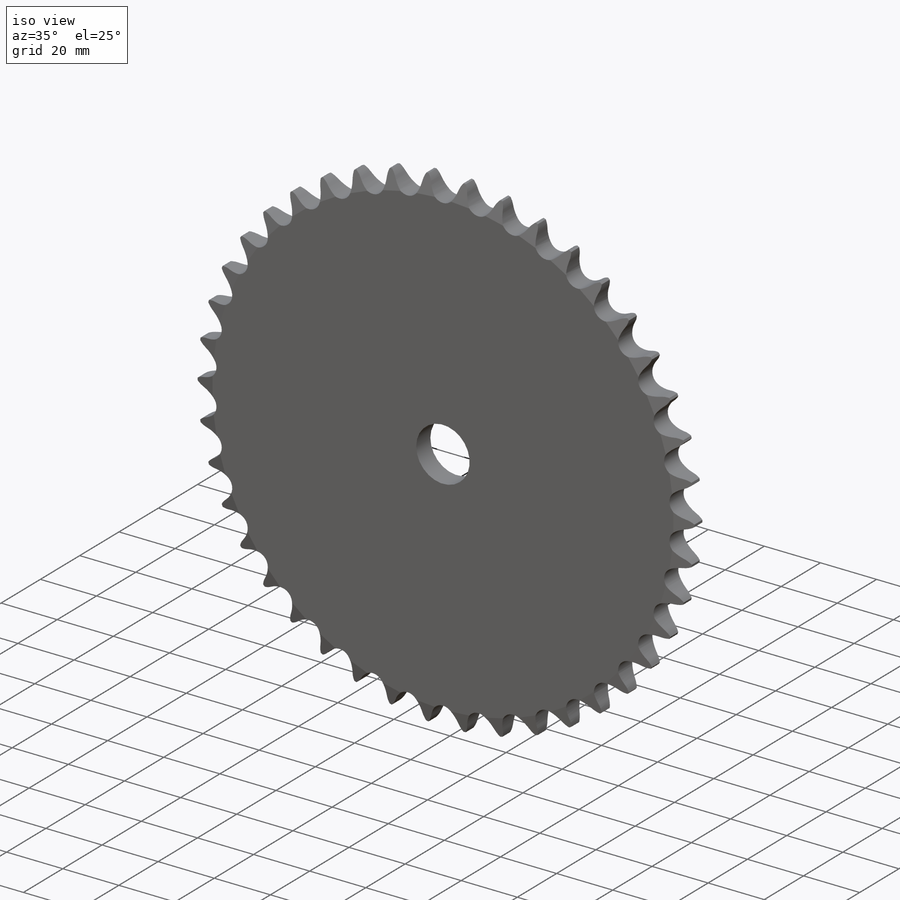
[diagram: iso view]
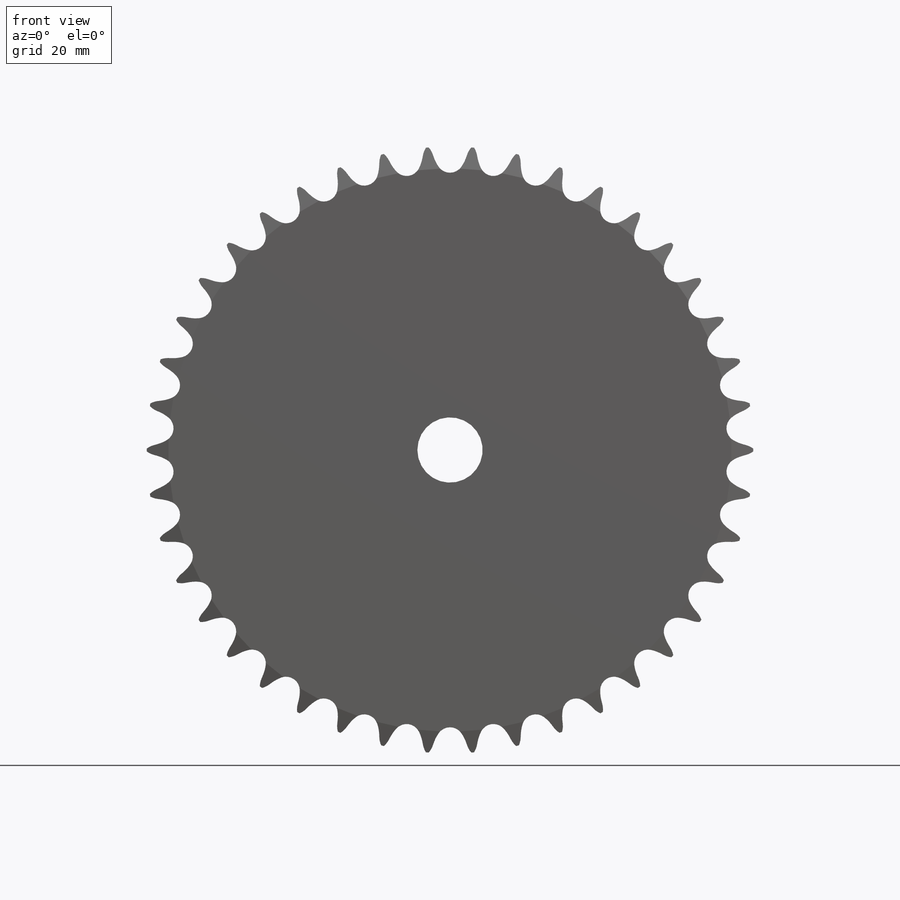
[diagram: front view]
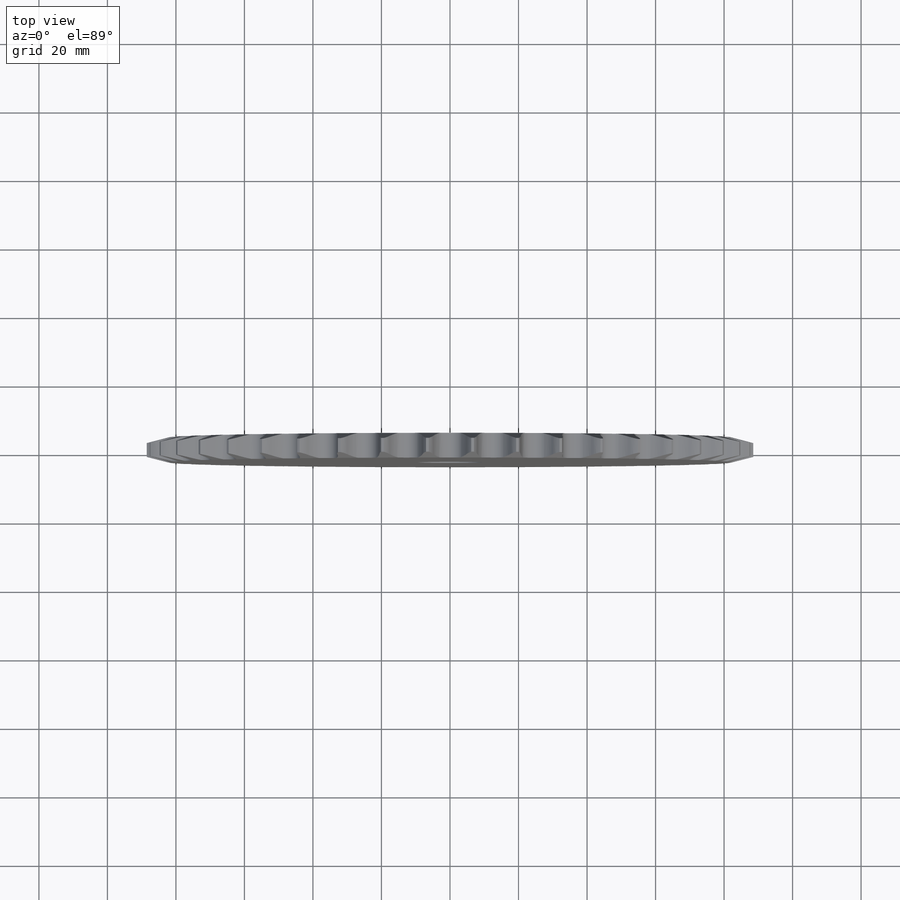
[diagram: top view]
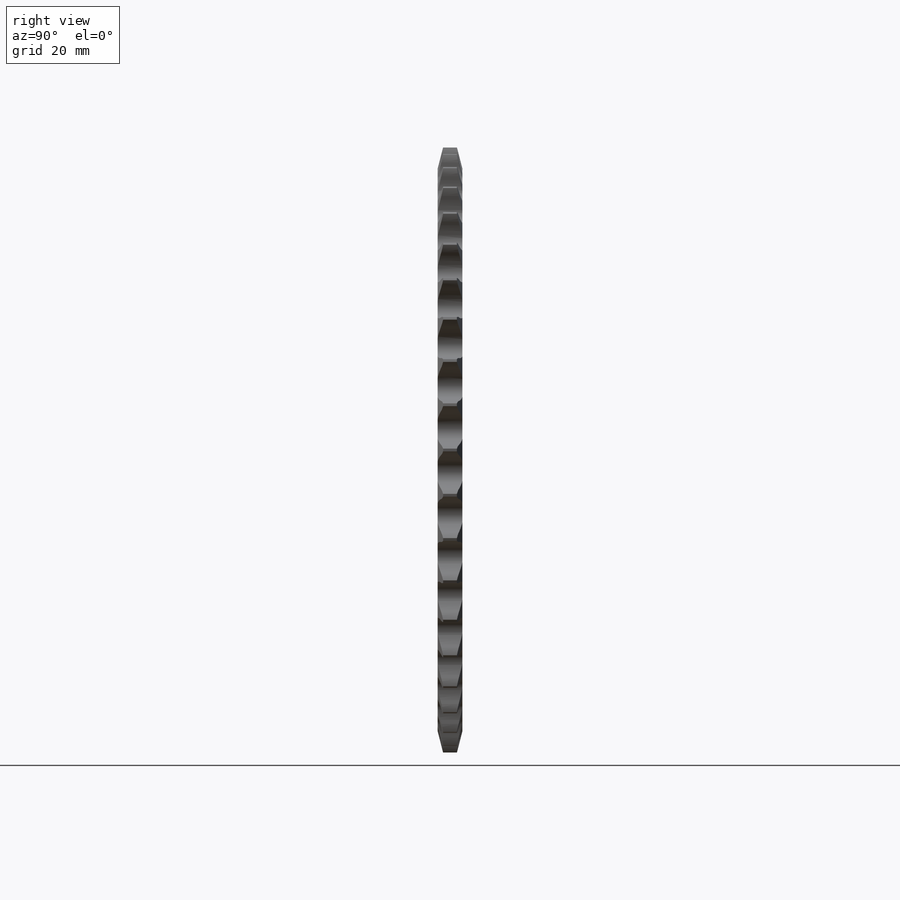
[diagram: right view]
SOLIDWORKS PART (.sldprt)
format: sldprt  version: not decoded by parser v0  size: 1,712,128 bytes
history: native  units: mm
features: sketch x12, cut_extrude x7, revolve x2, pattern_circular x2, material x1, plane x1, extrude x1 (+11 scaffold rows collapsed)
feature tree (37):
  scaffold x11  (default folders/planes/origin — collapsed)
  material  "Material <not specified>"
  sketch  "Sprocket-BaseSketch"  dims[Hub Surface=3.6068mm RightSide (1)=1.5875mm RightSide (2)=6.35mm OD=~88.544861mm LeftSide (1)=1.5875mm LeftSide (2)=6.35mm Tooth Width=7.2136mm]
  revolve  "40 (08A) ANSI (ISO) Chain Number, 6.691in P.D."  Angle=360deg
  sketch  "Tooth-Sketch"
  cut_extrude  "Tooth-Cut, Number of teeth: 42"  Depth=25.4mm
  pattern_circular  "Tooth Pattern, 42 / 42"  Count=42 Angle=8.571429deg
  sketch  "Sketch3"  dims[Hub Mounting=3.6068mm Hub OD=44.45mm Hub Width=21.3614mm]
  revolve  "Hub-Revolve1"  Angle=360deg
  sketch  "Sketch4"  dims[Bore Diameter =19.05mm]
  cut_extrude  "Cut-Extrude1"  [1 undecoded]
  sketch  "Sketch5"
  plane  "Plane1"
  sketch  "Sketch6"  dims[Keyway Wd =4.7625mm Keyway Dp =~2.38125mm]
  cut_extrude  "Cut-Extrude2"  [1 undecoded]
  sketch  "Sketch7"
  cut_extrude  "Cut-Extrude3"  [1 undecoded]
  sketch  "Sketch8"
  extrude  "Extrude1"  [1 undecoded]
  sketch  "Sketch9"
  cut_extrude  "Cut-Extrude4"  Depth=2.54mm
  pattern_circular  "CirPattern1"  Count=2 Angle=90deg
  sketch  "Sketch10"  dims[D1=~5.30225mm D2=~5.30225mm]
  sketch  "Sketch11"  dims[D1=203.2mm]
  cut_extrude  "Cut-Extrude5"  Depth=203.2mm
  sketch  "Sketch12"  dims[D1=~80.433333mm]
  cut_extrude  "Cut-Extrude6"  [1 undecoded]
decode coverage: 14 of 24 modeling features carry decoded parameters
note: ~ marks probable driven/reference dimensions
note: 5 parameter values undecoded
summary: no parameter record found for 5 features
note: suppression state not decoded; provenance and decode notes live in map.json
